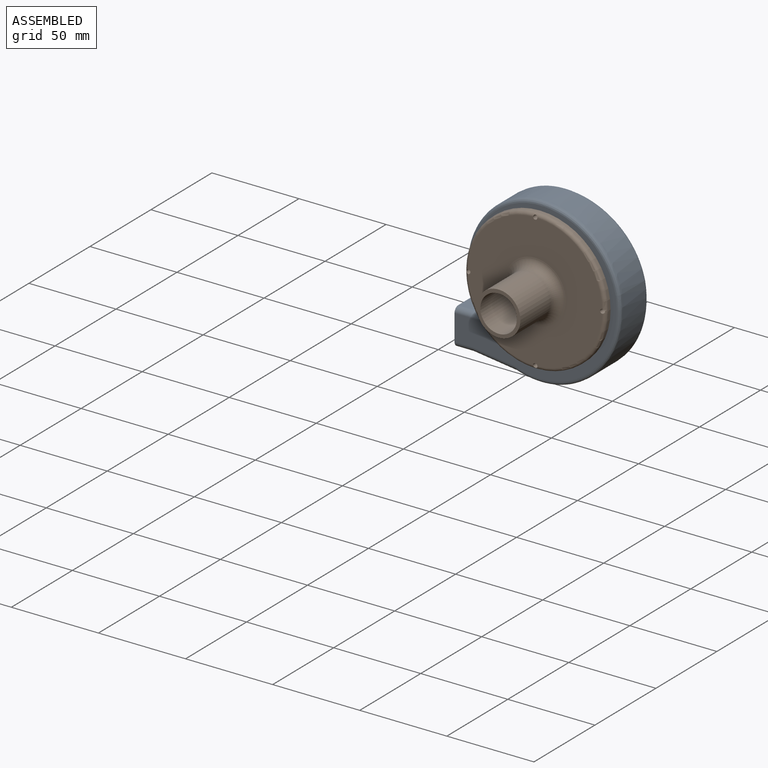
[diagram: assembled view]
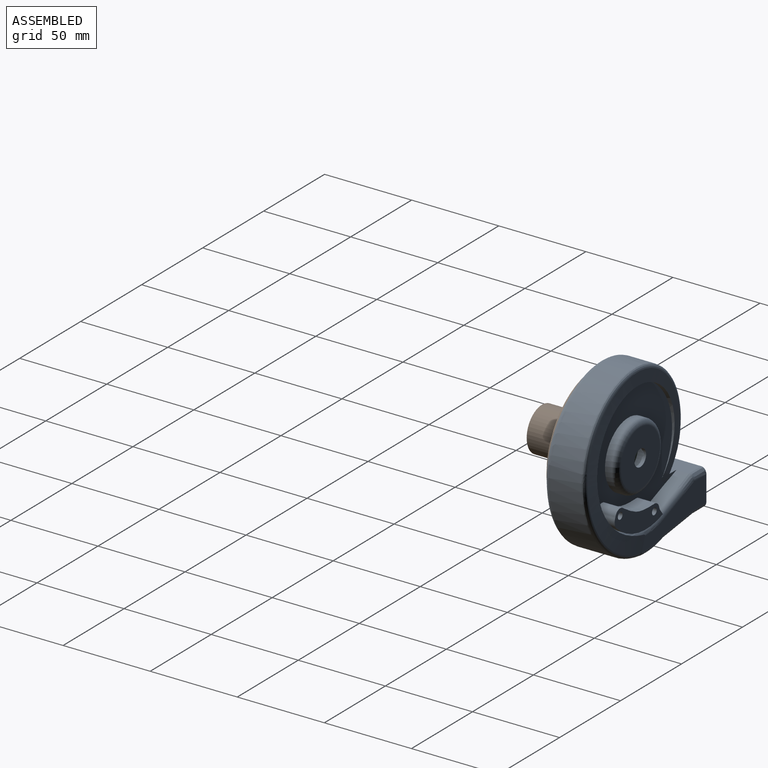
[diagram: assembled view, second angle]
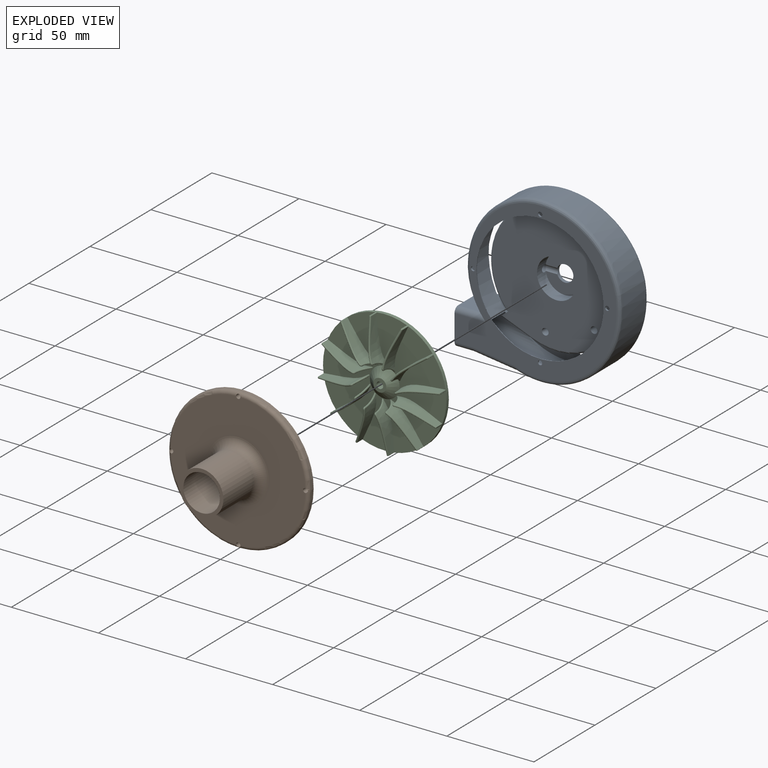
[diagram: exploded view]
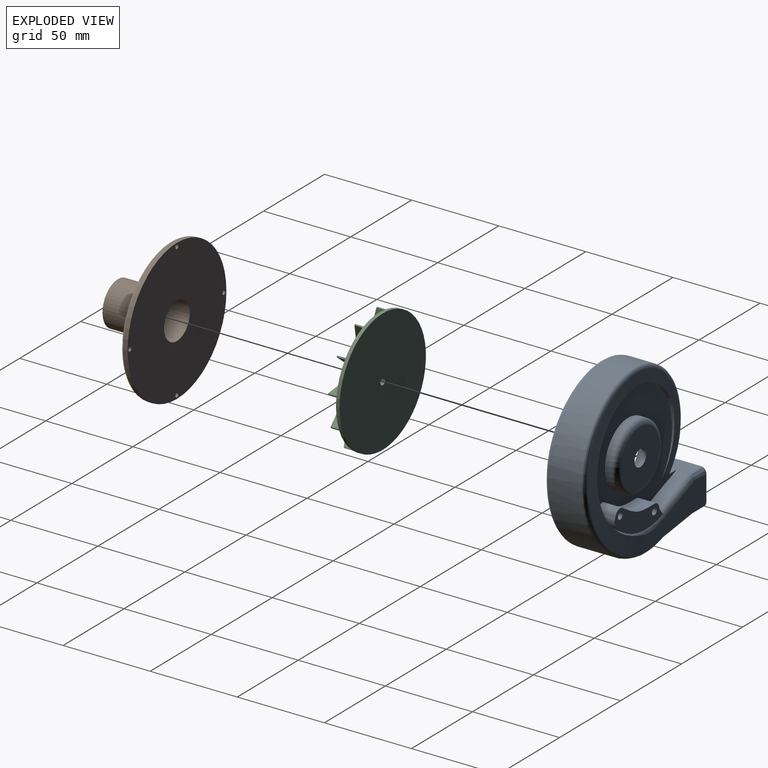
[diagram: exploded view, second angle]
ASSEMBLY  parts=3 mates=2
PART A: 104 faces, bbox 104.8x30.8x105.3 mm
  f0: plane 16.11x12mm, normal (0,0,1), area 193.3mm2, adj f4,f46,f85,f86
  f1: plane 14.11x12mm, normal (0,1,0), area 169.3mm2, adj f3,f4,f80,f86
  f2: plane 0.2x0.01mm, normal (1,0,0), area 0mm2, adj f31,f37,f81
  f3: plane 15.13x2.02mm, normal (1,0,0), area 14.4mm2, adj f1,f27,f44,f66,f80
  f4: plane 26x20.88mm, normal (-1,0,0), area 170.2mm2, adj f0,f1,f7,f9,f15,f37,f44,f65
  f5: cylinder r=48.79mm len=22.84mm, axis (0,-1,0), area 76.2mm2, adj f6,f14,f18,f26,f68,f73
  f6: cylinder r=200mm len=22.54mm, axis (0,-1,0), area 81mm2, adj f5,f22,f26,f68,f73
  f7: plane 93.13x90.21mm, normal (0,-1,0), area 2112.3mm2, adj f4,f21,f55,f63,f65,f68,f69,f70
  f8: bspline ~26.39x26mm, area 75.2mm2, adj f10,f12,f15,f24,f60
  f9: plane 52.72x20.81mm, normal (0,1,0), area 554mm2, adj f4,f25,f60,f61,f62,f64,f74,f78
  f10: bspline ~100.83x100.36mm, area 1519mm2, adj f8,f11,f12,f15,f16,f25,f62,f71
  f11: cylinder r=36mm len=72mm, axis (0,-1,0), area 742mm2, adj f10,f12,f62,f103
  f12: plane 72x69.38mm, normal (0,1,0), area 2561.7mm2, adj f8,f10,f11,f24,f49,f96,f97,f99
  f13: extruded ~42.63x36.9mm, area 992.2mm2, adj f14,f17,f19,f71,f72
  f14: extruded ~55.18x32.79mm, area 1322.9mm2, adj f5,f13,f18,f73
  f15: plane 20.18x15.76mm, normal (0,0,1), area 271.5mm2, adj f4,f8,f10,f16,f65,f78
  f16: extruded ~29.67x13.11mm, area 400.3mm2, adj f10,f15,f17,f21,f71
  f17: extruded ~44.67x38.41mm, area 880.9mm2, adj f13,f16,f20,f71
  f18: extruded ~55.18x32.79mm, area 69.5mm2, adj f5,f14,f19,f68
  f19: extruded ~42.63x36.9mm, area 60.7mm2, adj f13,f18,f20,f69
  f20: extruded ~44.67x38.41mm, area 64.8mm2, adj f17,f19,f21,f70
  f21: extruded ~32.67x10.85mm, area 85.7mm2, adj f7,f16,f20,f65,f70
  f22: extruded ~22x18.66mm, area 388.8mm2, adj f6,f23,f63,f64,f68,f73,f74,f75
  f23: plane 27.99x20mm, normal (-0.13,0,-0.99), area 564.8mm2, adj f22,f63,f64,f76
  f24: cylinder r=1500mm len=16.19mm, axis (0,-1,0), area 130.6mm2, adj f8,f12,f61,f99
  f25: cylinder r=2.1mm len=8.6mm, axis (0.32,0,-0.95), area 6mm2, adj f9,f10,f62,f75
  f26: bspline ~3.54x1.95mm, area 1.2mm2, adj f5,f6,f73
  f27: plane 88.61x82.51mm, normal (0,1,0), area 1230.7mm2, adj f3,f41,f42,f43,f44,f55,f56,f66
  f28: cylinder r=1498mm len=16.17mm, axis (0,-1,0), area 165.3mm2, adj f29,f31,f37,f53
  f29: cylinder r=38mm len=76mm, axis (0,-1,0), area 1025.7mm2, adj f28,f36,f37,f52,f87
  f30: plane 74x74mm, normal (0,-1,0), area 3905.8mm2, adj f47,f52,f53,f54,f93,f94
  f31: offset ~30.39x30mm, area 67.5mm2, adj f2,f28,f37,f54,f81,f83
  f32: extruded ~49.47x31.36mm, area 1143mm2, adj f45,f57,f88
  f33: extruded ~38.88x29.01mm, area 831.8mm2, adj f43,f56,f57
  f34: extruded ~42.34x36.63mm, area 836.2mm2, adj f35,f42,f56
  f35: extruded ~31.46x12.2mm, area 386.4mm2, adj f34,f41,f44
  f36: cylinder r=0.1mm len=8.86mm, axis (0.32,0,-0.95), area 0.1mm2, adj f29,f37,f40,f87
  f37: plane 52.72x21.01mm, normal (0,-1,0), area 484.1mm2, adj f2,f4,f28,f29,f31,f36,f40,f67
  f38: cylinder r=202mm len=20.59mm, axis (0,-1,0), area 72.7mm2, adj f40,f45,f87,f88
  f39: plane 26.38x13mm, normal (0.13,0,0.99), area 346mm2, adj f40,f46,f66,f67
  f40: extruded ~31.02x20mm, area 363.1mm2, adj f36,f37,f38,f39,f66,f67,f87,f88
  f41: extruded ~31.46x10.62mm, area 68mm2, adj f27,f35,f42,f44
  f42: extruded ~42.34x36.63mm, area 123mm2, adj f27,f34,f41,f56
  f43: extruded ~38.88x29.01mm, area 82.7mm2, adj f27,f33,f56,f57,f88
  f44: plane 22.02x19.67mm, normal (0,0,-1), area 320.3mm2, adj f3,f4,f27,f35,f41,f80,f81,f82
  f45: cylinder r=46.79mm len=20.36mm, axis (0,-1,0), area 64.4mm2, adj f32,f38,f88
  f46: plane 16.12x0.27mm, normal (1,0,0), area 3.8mm2, adj f0,f39,f66,f67
  f47: cylinder r=11.25mm len=22.5mm, axis (0,-1,0), area 485.4mm2, adj f30,f50,f59
  f48: plane 32x32mm, normal (0,1,0), area 733.4mm2, adj f51,f58
  f49: cylinder r=19mm len=38mm, axis (0,-1,0), area 471.7mm2, adj f12,f58,f59
  f50: plane 22.5x22.38mm, normal (0,-1,0), area 305.2mm2, adj f47,f51,f59
  f51: cylinder r=4.75mm len=9.5mm, axis (0,1,0), area 57.5mm2, adj f48,f50,f59
  f52: torus R=37mm, axis (0,-1,0), area 328.6mm2, adj f29,f30,f53
  f53: torus R=1499mm, axis (0,-1,0), area 27.3mm2, adj f28,f30,f52,f54
  f54: bspline ~16.77x7.29mm, area 9.5mm2, adj f30,f31,f53,f84
  f55: torus R=37.5mm, axis (0,-1,0), area 362.9mm2, adj f7,f27,f89,f90,f91,f92
  f56: cylinder r=100000mm len=17.05mm, axis (0,1,0), area 7.6mm2, adj f27,f33,f34,f42,f43
  f57: cylinder r=40mm len=17.96mm, axis (0,1,0), area 170mm2, adj f32,f33,f43,f88
  f58: torus R=16mm, axis (0,1,0), area 524.1mm2, adj f48,f49,f59
  f59: cylinder r=1.93mm len=14.45mm, axis (1,0,0), area 118.6mm2, adj f47,f49,f50,f51,f58
  f60: bspline ~20.64x10.6mm, area 45.5mm2, adj f8,f9,f61,f78
  f61: torus R=1497mm, axis (0,1,0), area 82mm2, adj f9,f24,f60,f62
  f62: torus R=39mm, axis (0,1,0), area 164.4mm2, adj f9,f10,f11,f25,f61,f98
  f63: cylinder r=3mm len=28.78mm, axis (0.99,0,-0.13), area 122.1mm2, adj f7,f22,f23,f68,f77
  f64: cylinder r=3mm len=28.78mm, axis (-0.99,0,0.13), area 122.1mm2, adj f9,f22,f23,f74,f79
  f65: cylinder r=3mm len=17.88mm, axis (-1,0,0), area 78.8mm2, adj f4,f7,f15,f21
  f66: cylinder r=5mm len=27.71mm, axis (0.99,0,-0.13), area 178.4mm2, adj f3,f27,f39,f40,f46,f86,f88
  f67: cylinder r=5mm len=27.71mm, axis (0.99,0,-0.13), area 152.1mm2, adj f37,f39,f40,f46,f85
  f68: bspline ~65.67x63.56mm, area 299.5mm2, adj f5,f6,f7,f18,f22,f63,f69
  f69: bspline ~47.73x38.83mm, area 187.8mm2, adj f7,f19,f68,f70
  f70: bspline ~64.64x49.26mm, area 236.8mm2, adj f7,f20,f21,f69
  f71: bspline ~66.25x46.81mm, area 227.8mm2, adj f10,f13,f16,f17,f72
  f72: bspline ~44.93x40.66mm, area 187.9mm2, adj f10,f13,f71,f73
  f73: bspline ~62.88x44.4mm, area 239.5mm2, adj f5,f6,f10,f14,f22,f26,f72,f75
  f74: bspline ~27.56x6.15mm, area 56.8mm2, adj f9,f22,f64,f75
  f75: bspline ~3.77x3.09mm, area 2.2mm2, adj f10,f22,f25,f73,f74
  f76: plane 20x10mm, normal (0,0,-1), area 200mm2, adj f4,f23,f77,f79
  f77: extruded ~10x3.03mm, area 47.3mm2, adj f4,f7,f63,f76
  f78: extruded ~10x3.3mm, area 49.5mm2, adj f4,f9,f15,f60
  f79: extruded ~10x3.03mm, area 47.3mm2, adj f4,f9,f64,f76
  f80: cylinder r=1mm len=12mm, axis (-1,0,0), area 18.8mm2, adj f1,f3,f4,f44
  f81: extruded ~12.15x1.3mm, area 20.5mm2, adj f2,f4,f31,f37,f44,f82,f83
  f82: cylinder r=2mm len=9.88mm, axis (0,-1,0), area 18.9mm2, adj f44,f81,f83,f84
  f83: cylinder r=0.5mm len=9.5mm, axis (0,-1,0), area 2.9mm2, adj f31,f81,f82,f84
  f84: bspline ~2.2x1.52mm, area 0.7mm2, adj f44,f54,f82,f83
  f85: extruded ~12x4.8mm, area 75.7mm2, adj f0,f4,f37,f67
  f86: extruded ~12x2.45mm, area 36.8mm2, adj f0,f1,f4,f66
  f87: bspline ~13.93x9.29mm, area 40.8mm2, adj f29,f36,f38,f40
  f88: bspline ~89.83x65.05mm, area 522.6mm2, adj f27,f32,f38,f40,f43,f45,f57,f66
  f89: cylinder r=1.25mm len=2.5mm, axis (0,-1,0), area 7.9mm2, adj f7,f27,f55
  f90: cylinder r=1.25mm len=2.5mm, axis (0,-1,0), area 7.9mm2, adj f7,f27,f55
  f91: cylinder r=1.25mm len=2.5mm, axis (0,-1,0), area 7.8mm2, adj f7,f27,f55
  f92: cylinder r=1.25mm len=2.5mm, axis (0,-1,0), area 7.9mm2, adj f7,f27,f55
  f93: cylinder r=1.93mm len=12.5mm, axis (0,-1,0), area 151.2mm2, adj f30,f95
  f94: cylinder r=1.93mm len=12.5mm, axis (0,-1,0), area 151.2mm2, adj f30,f95
  f95: plane 39.55x19.04mm, normal (0,1,0), area 376.7mm2, adj f93,f94,f96,f97,f98,f99,f100,f101
  f96: cylinder r=4mm len=10.5mm, axis (0,-1,0), area 87.8mm2, adj f12,f95,f97,f102
  f97: cylinder r=5mm len=10.5mm, axis (0,-1,0), area 8.5mm2, adj f12,f95,f96,f103
  f98: cylinder r=36mm len=37.95mm, axis (0,-1,0), area 122.1mm2, adj f62,f95,f99,f103
  f99: plane 10.5x3.02mm, normal (-0.81,0,0.59), area 39.4mm2, adj f12,f24,f95,f98,f100
  f100: cylinder r=5mm len=10.5mm, axis (0,-1,0), area 22mm2, adj f12,f95,f99,f101
  f101: cylinder r=4mm len=10.5mm, axis (0,-1,0), area 62mm2, adj f12,f95,f100,f102
  f102: extruded ~24.73x10.5mm, area 277.3mm2, adj f12,f95,f96,f101
  f103: cylinder r=5mm len=10.5mm, axis (0,1,0), area 65mm2, adj f11,f12,f95,f97,f98
PART B: 12 faces, bbox 87.7x34x87.7 mm
  f0: cylinder r=40.5mm len=81mm, axis (0,1,0), area 508.9mm2, adj f2,f8
  f1: plane 76.96x76.96mm, normal (0,-1,0), area 3684.8mm2, adj f3,f5,f6,f7,f8,f11
  f2: plane 81x81mm, normal (0,1,0), area 4787mm2, adj f0,f3,f4,f5,f6,f7
  f3: cylinder r=1.25mm len=4mm, axis (0,-1,0), area 30.6mm2, adj f1,f2,f8
  f4: cylinder r=10.5mm len=34mm, axis (0,-1,0), area 2243.1mm2, adj f2,f10
  f5: cylinder r=1.25mm len=4mm, axis (0,-1,0), area 30.6mm2, adj f1,f2,f8
  f6: cylinder r=1.25mm len=4mm, axis (0,-1,0), area 30.6mm2, adj f1,f2,f8
  f7: cylinder r=1.25mm len=4mm, axis (0,-1,0), area 30.6mm2, adj f1,f2,f8
  f8: torus R=38.5mm, axis (0,-1,0), area 774.6mm2, adj f0,f1,f3,f5,f6,f7
  f9: cylinder r=12.5mm len=25mm, axis (0,1,0), area 1963.5mm2, adj f10,f11
  f10: plane 25x25mm, normal (0,-1,0), area 144.5mm2, adj f4,f9
  f11: torus R=17.5mm, axis (0,-1,0), area 706.5mm2, adj f1,f9
PART C: 282 faces, bbox 90.4x90.4x12.4 mm
  f0: plane 70.88x70.88mm, normal (0,0,1), area 3385.4mm2, adj f1,f2,f3,f4,f5,f6,f7,f22
  f1: extruded ~18.8x17.74mm, area 168.2mm2, adj f0,f4,f5,f17,f19,f21
  f2: extruded ~19.17x18.2mm, area 172.2mm2, adj f0,f3,f7,f16,f18,f20
  f3: cylinder r=1mm len=0.05mm, axis (0,0,-1), area 0mm2, adj f0,f2,f22
  f4: cylinder r=5mm len=0.08mm, axis (0,0,-1), area 0mm2, adj f0,f1,f23
  f5: cylinder r=0.25mm len=4.56mm, axis (0,0,-1), area 1.8mm2, adj f0,f1,f6,f15
  f6: plane 4.62x0.4mm, normal (-0.57,0.82,0), area 2.3mm2, adj f0,f5,f7,f11,f12,f15
  f7: cylinder r=0.25mm len=4.56mm, axis (0,0,-1), area 1.8mm2, adj f0,f2,f6,f12,f139
  f8: cone r=35.5mm half-angle=78deg, axis (0,0,-1), area 0mm2, adj f10,f11,f16,f17
  f9: revolved ~8.52x3.66mm, area 0mm2, adj f10,f20,f21,f22,f23
  f10: torus R=13mm, axis (0,0,-1), area 0mm2, adj f8,f9,f18,f19
  f11: bspline ~12.03x8.5mm, area 0.2mm2, adj f6,f8,f13,f14
  f12: bspline ~0.37x0.28mm, area 0mm2, adj f6,f7,f13,f16
  f13: bspline ~0.63x0.57mm, area 0.1mm2, adj f11,f12,f16
  f14: bspline ~0.61x0.57mm, area 0.1mm2, adj f11,f15,f17
  f15: bspline ~0.37x0.28mm, area 0mm2, adj f5,f6,f14,f17
  f16: bspline ~26.91x22.07mm, area 17.8mm2, adj f2,f8,f12,f13,f18
  f17: bspline ~21.01x18.03mm, area 17.6mm2, adj f1,f8,f14,f15,f19
  f18: bspline ~1.41x1.17mm, area 1mm2, adj f2,f10,f16,f20
  f19: bspline ~1.71x1.33mm, area 1.3mm2, adj f1,f10,f17,f21
  f20: bspline ~11.15x4.64mm, area 5.2mm2, adj f2,f9,f18,f22
  f21: bspline ~11.1x4.69mm, area 9.7mm2, adj f1,f9,f19,f23
  f22: bspline ~1.2x0.67mm, area 0.2mm2, adj f0,f3,f9,f20,f23
  f23: bspline ~2.02x1.99mm, area 0.5mm2, adj f0,f4,f9,f21,f22
  f24: extruded ~24.76x9.27mm, area 168.2mm2, adj f0,f27,f28,f40,f42,f44
  f25: extruded ~25.35x9.27mm, area 172.2mm2, adj f0,f26,f30,f39,f41,f43
  f26: cylinder r=1mm len=0.05mm, axis (0,0,-1), area 0mm2, adj f0,f25,f45
  f27: cylinder r=5mm len=0.08mm, axis (0,0,-1), area 0mm2, adj f0,f24,f46
  f28: cylinder r=0.25mm len=4.56mm, axis (0,0,-1), area 1.8mm2, adj f0,f24,f29,f38
  f29: plane 4.62x0.44mm, normal (-0.9,0.43,0), area 2.3mm2, adj f0,f28,f30,f34,f35,f38
  f30: cylinder r=0.25mm len=4.56mm, axis (0,0,-1), area 1.8mm2, adj f0,f25,f29,f35,f139
  f31: cone r=35.5mm half-angle=78deg, axis (0,0,-1), area 0mm2, adj f33,f34,f39,f40
  f32: revolved ~8.52x3.67mm, area 0mm2, adj f33,f43,f44,f45,f46
  f33: torus R=13mm, axis (0,0,-1), area 0mm2, adj f31,f32,f41,f42
  f34: bspline ~13.79x6.79mm, area 0.2mm2, adj f29,f31,f36,f37
  f35: bspline ~0.35x0.28mm, area 0mm2, adj f29,f30,f36,f39
  f36: bspline ~0.57x0.57mm, area 0.1mm2, adj f34,f35,f39
  f37: bspline ~0.62x0.57mm, area 0.1mm2, adj f34,f38,f40
  f38: bspline ~0.35x0.28mm, area 0mm2, adj f28,f29,f37,f40
  f39: bspline ~26.07x9.66mm, area 17.8mm2, adj f25,f31,f35,f36,f41
  f40: bspline ~24.28x9.57mm, area 17.6mm2, adj f24,f31,f37,f38,f42
  f41: bspline ~1.49x1.04mm, area 1mm2, adj f25,f33,f39,f43
  f42: bspline ~1.76x1.05mm, area 1.3mm2, adj f24,f33,f40,f44
  f43: bspline ~11.15x5.01mm, area 5.2mm2, adj f25,f32,f41,f45
  f44: bspline ~11.1x5.18mm, area 9.7mm2, adj f24,f32,f42,f46
  f45: bspline ~1.09x0.67mm, area 0.2mm2, adj f0,f26,f32,f43,f46
  f46: bspline ~2.02x2.01mm, area 0.5mm2, adj f0,f27,f32,f44,f45
  f47: extruded ~25.15x9.27mm, area 168.2mm2, adj f0,f50,f51,f63,f65,f67
  f48: extruded ~25.7x9.27mm, area 172.2mm2, adj f0,f49,f53,f62,f64,f66
  f49: cylinder r=1mm len=0.04mm, axis (0,0,-1), area 0mm2, adj f0,f48,f68
  f50: cylinder r=5mm len=0.08mm, axis (0,0,-1), area 0mm2, adj f0,f47,f69
  f51: cylinder r=0.25mm len=4.56mm, axis (0,0,-1), area 1.8mm2, adj f0,f47,f52,f61
  f52: plane 4.62x0.49mm, normal (-1,-0.08,0), area 2.3mm2, adj f0,f51,f53,f57,f58,f61
  f53: cylinder r=0.25mm len=4.56mm, axis (0,0,-1), area 1.8mm2, adj f0,f48,f52,f58,f139
  f54: cone r=35.5mm half-angle=78deg, axis (0,0,-1), area 0mm2, adj f56,f57,f62,f63
  f55: revolved ~8.52x3.1mm, area 0mm2, adj f56,f66,f67,f68,f69
  f56: torus R=13mm, axis (0,0,-1), area 0mm2, adj f54,f55,f64,f65
  f57: bspline ~14.52x1.59mm, area 0.2mm2, adj f52,f54,f59,f60
  f58: bspline ~0.29x0.28mm, area 0mm2, adj f52,f53,f59,f62
  f59: bspline ~0.57x0.52mm, area 0.1mm2, adj f57,f58,f62
  f60: bspline ~0.57x0.49mm, area 0.1mm2, adj f57,f61,f63
  f61: bspline ~0.29x0.28mm, area 0mm2, adj f51,f52,f60,f63
  f62: bspline ~34.22x7.83mm, area 17.8mm2, adj f48,f54,f58,f59,f64
  f63: bspline ~25.54x5.98mm, area 17.6mm2, adj f47,f54,f60,f61,f65
  f64: bspline ~1.42x1.04mm, area 1mm2, adj f48,f56,f62,f66
  f65: bspline ~1.56x1.21mm, area 1.3mm2, adj f47,f56,f63,f67
  f66: bspline ~11.15x4.09mm, area 5.2mm2, adj f48,f55,f64,f68
  f67: bspline ~8.72x3.72mm, area 9.7mm2, adj f47,f55,f65,f69
  f68: bspline ~0.99x0.69mm, area 0.2mm2, adj f0,f49,f55,f66,f69
  f69: bspline ~1.09x0.82mm, area 0.5mm2, adj f0,f50,f55,f67,f68
  f70: extruded ~25.15x9.27mm, area 168.2mm2, adj f0,f73,f74,f86,f88,f90
  f71: extruded ~25.7x9.27mm, area 172.2mm2, adj f0,f72,f76,f85,f87,f89
  f72: cylinder r=1mm len=0.04mm, axis (0,0,-1), area 0mm2, adj f0,f71,f91
  f73: cylinder r=5mm len=0.08mm, axis (0,0,-1), area 0mm2, adj f0,f70,f92
  f74: cylinder r=0.25mm len=4.56mm, axis (0,0,-1), area 1.8mm2, adj f0,f70,f75,f84
  f75: plane 4.62x0.49mm, normal (0.08,-1,0), area 2.3mm2, adj f0,f74,f76,f80,f81,f84
  f76: cylinder r=0.25mm len=4.56mm, axis (0,0,-1), area 1.8mm2, adj f0,f71,f75,f81,f139
  f77: cone r=35.5mm half-angle=78deg, axis (0,0,-1), area 0mm2, adj f79,f80,f85,f86
  f78: revolved ~8.52x3.1mm, area 0mm2, adj f79,f89,f90,f91,f92
  f79: torus R=13mm, axis (0,0,-1), area 0mm2, adj f77,f78,f87,f88
  f80: bspline ~14.52x1.59mm, area 0.2mm2, adj f75,f77,f82,f83
  f81: bspline ~0.29x0.28mm, area 0mm2, adj f75,f76,f82,f85
  f82: bspline ~0.57x0.52mm, area 0.1mm2, adj f80,f81,f85
  f83: bspline ~0.57x0.49mm, area 0.1mm2, adj f80,f84,f86
  f84: bspline ~0.29x0.28mm, area 0mm2, adj f74,f75,f83,f86
  f85: bspline ~34.22x7.83mm, area 17.8mm2, adj f71,f77,f81,f82,f87
  f86: bspline ~26.86x6.27mm, area 17.6mm2, adj f70,f77,f83,f84,f88
  f87: bspline ~1.42x1.04mm, area 1mm2, adj f71,f79,f85,f89
  f88: bspline ~1.56x1.21mm, area 1.3mm2, adj f70,f79,f86,f90
  f89: bspline ~11.15x4.09mm, area 5.2mm2, adj f71,f78,f87,f91
  f90: bspline ~8.72x3.72mm, area 9.7mm2, adj f70,f78,f88,f92
  f91: bspline ~0.99x0.69mm, area 0.2mm2, adj f0,f72,f78,f89,f92
  f92: bspline ~1.09x0.82mm, area 0.5mm2, adj f0,f73,f78,f90,f91
  f93: extruded ~18.8x17.74mm, area 168.2mm2, adj f0,f96,f97,f109,f111,f113
  f94: extruded ~19.17x18.2mm, area 172.2mm2, adj f0,f95,f99,f108,f110,f112
  f95: cylinder r=1mm len=0.05mm, axis (0,0,-1), area 0mm2, adj f0,f94,f114
  f96: cylinder r=5mm len=0.08mm, axis (0,0,-1), area 0mm2, adj f0,f93,f115
  f97: cylinder r=0.25mm len=4.56mm, axis (0,0,-1), area 1.8mm2, adj f0,f93,f98,f107
  f98: plane 4.62x0.4mm, normal (0.57,-0.82,0), area 2.3mm2, adj f0,f97,f99,f103,f104,f107
  f99: cylinder r=0.25mm len=4.56mm, axis (0,0,-1), area 1.8mm2, adj f0,f94,f98,f104,f139
  f100: cone r=35.5mm half-angle=78deg, axis (0,0,-1), area 0mm2, adj f102,f103,f108,f109
  f101: revolved ~8.52x3.66mm, area 0mm2, adj f102,f112,f113,f114,f115
  f102: torus R=13mm, axis (0,0,-1), area 0mm2, adj f100,f101,f110,f111
  f103: bspline ~12.03x8.5mm, area 0.2mm2, adj f98,f100,f105,f106
  f104: bspline ~0.37x0.28mm, area 0mm2, adj f98,f99,f105,f108
  f105: bspline ~0.63x0.57mm, area 0.1mm2, adj f103,f104,f108
  f106: bspline ~0.61x0.57mm, area 0.1mm2, adj f103,f107,f109
  f107: bspline ~0.37x0.28mm, area 0mm2, adj f97,f98,f106,f109
  f108: bspline ~26.91x22.07mm, area 17.8mm2, adj f94,f100,f104,f105,f110
  f109: bspline ~21.01x18.03mm, area 17.6mm2, adj f93,f100,f106,f107,f111
  f110: bspline ~1.41x1.17mm, area 1mm2, adj f94,f102,f108,f112
  f111: bspline ~1.71x1.33mm, area 1.3mm2, adj f93,f102,f109,f113
  f112: bspline ~11.15x4.64mm, area 5.2mm2, adj f94,f101,f110,f114
  f113: bspline ~11.1x4.69mm, area 9.7mm2, adj f93,f101,f111,f115
  f114: bspline ~1.2x0.67mm, area 0.2mm2, adj f0,f95,f101,f112,f115
  f115: bspline ~2.02x1.99mm, area 0.5mm2, adj f0,f96,f101,f113,f114
  f116: extruded ~25.15x9.27mm, area 168.2mm2, adj f0,f119,f120,f132,f134,f136
  f117: extruded ~25.7x9.27mm, area 172.2mm2, adj f0,f118,f122,f131,f133,f135
  f118: cylinder r=1mm len=0.04mm, axis (0,0,-1), area 0mm2, adj f0,f117,f137
  f119: cylinder r=5mm len=0.08mm, axis (0,0,-1), area 0mm2, adj f0,f116,f138
  f120: cylinder r=0.25mm len=4.56mm, axis (0,0,-1), area 1.8mm2, adj f0,f116,f121,f130
  f121: plane 4.62x0.49mm, normal (-0.08,1,0), area 2.3mm2, adj f0,f120,f122,f126,f127,f130
  f122: cylinder r=0.25mm len=4.56mm, axis (0,0,-1), area 1.8mm2, adj f0,f117,f121,f127,f139
  f123: cone r=35.5mm half-angle=78deg, axis (0,0,-1), area 0mm2, adj f125,f126,f131,f132
  f124: revolved ~8.52x3.1mm, area 0mm2, adj f125,f135,f136,f137,f138
  f125: torus R=13mm, axis (0,0,-1), area 0mm2, adj f123,f124,f133,f134
  f126: bspline ~14.52x1.59mm, area 0.2mm2, adj f121,f123,f128,f129
  f127: bspline ~0.29x0.28mm, area 0mm2, adj f121,f122,f128,f131
  f128: bspline ~0.57x0.52mm, area 0.1mm2, adj f126,f127,f131
  f129: bspline ~0.57x0.49mm, area 0.1mm2, adj f126,f130,f132
  f130: bspline ~0.29x0.28mm, area 0mm2, adj f120,f121,f129,f132
  f131: bspline ~34.22x7.83mm, area 17.8mm2, adj f117,f123,f127,f128,f133
  f132: bspline ~25.54x5.98mm, area 17.6mm2, adj f116,f123,f129,f130,f134
  f133: bspline ~1.42x1.04mm, area 1mm2, adj f117,f125,f131,f135
  f134: bspline ~1.56x1.21mm, area 1.3mm2, adj f116,f125,f132,f136
  f135: bspline ~11.15x4.09mm, area 5.2mm2, adj f117,f124,f133,f137
  f136: bspline ~11.1x4.48mm, area 9.7mm2, adj f116,f124,f134,f138
  f137: bspline ~0.99x0.69mm, area 0.2mm2, adj f0,f118,f124,f135,f138
  f138: bspline ~1.09x0.82mm, area 0.5mm2, adj f0,f119,f124,f136,f137
  f139: cylinder r=35.42mm len=70.84mm, axis (0,0,1), area 445.1mm2, adj f0,f7,f30,f53,f76,f99,f122,f140
  f140: plane 70.84x70.84mm, normal (0,0,-1), area 3929.8mm2, adj f139,f143
  f141: cone r=8.5mm half-angle=50deg, axis (0,0,-1), area 239.2mm2, adj f0,f142
  f142: plane 7.47x7.47mm, normal (0,0,1), area 32.1mm2, adj f141,f143
  f143: cylinder r=1.93mm len=6mm, axis (0,0,1), area 72.6mm2, adj f140,f142
  f144: extruded ~18.8x17.74mm, area 168.2mm2, adj f0,f147,f148,f160,f162,f164
  f145: extruded ~19.17x18.2mm, area 172.2mm2, adj f0,f146,f150,f159,f161,f163
  f146: cylinder r=1mm len=0.05mm, axis (0,0,-1), area 0mm2, adj f0,f145,f165
  f147: cylinder r=5mm len=0.08mm, axis (0,0,-1), area 0mm2, adj f0,f144,f166
  f148: cylinder r=0.25mm len=4.56mm, axis (0,0,-1), area 1.8mm2, adj f0,f144,f149,f158
  f149: plane 4.62x0.4mm, normal (-0.82,-0.57,0), area 2.3mm2, adj f0,f148,f150,f154,f155,f158
  f150: cylinder r=0.25mm len=4.56mm, axis (0,0,-1), area 1.8mm2, adj f0,f139,f145,f149,f155
  f151: cone r=35.5mm half-angle=78deg, axis (0,0,-1), area 0mm2, adj f153,f154,f159,f160
  f152: revolved ~8.52x3.66mm, area 0mm2, adj f153,f163,f164,f165,f166
  f153: torus R=13mm, axis (0,0,-1), area 0mm2, adj f151,f152,f161,f162
  f154: bspline ~12.03x8.5mm, area 0.2mm2, adj f149,f151,f156,f157
  f155: bspline ~0.37x0.28mm, area 0mm2, adj f149,f150,f156,f159
  f156: bspline ~0.63x0.57mm, area 0.1mm2, adj f154,f155,f159
  f157: bspline ~0.61x0.57mm, area 0.1mm2, adj f154,f158,f160
  f158: bspline ~0.37x0.28mm, area 0mm2, adj f148,f149,f157,f160
  f159: bspline ~26.91x22.07mm, area 17.8mm2, adj f145,f151,f155,f156,f161
  f160: bspline ~21.01x18.03mm, area 17.6mm2, adj f144,f151,f157,f158,f162
  f161: bspline ~1.41x1.17mm, area 1mm2, adj f145,f153,f159,f163
  f162: bspline ~1.71x1.33mm, area 1.3mm2, adj f144,f153,f160,f164
  f163: bspline ~11.15x4.64mm, area 5.2mm2, adj f145,f152,f161,f165
  f164: bspline ~11.1x4.69mm, area 9.7mm2, adj f144,f152,f162,f166
  f165: bspline ~1.2x0.67mm, area 0.2mm2, adj f0,f146,f152,f163,f166
  f166: bspline ~2.02x1.99mm, area 0.5mm2, adj f0,f147,f152,f164,f165
  f167: extruded ~24.76x9.27mm, area 168.2mm2, adj f0,f170,f171,f183,f185,f187
  f168: extruded ~25.35x9.27mm, area 172.2mm2, adj f0,f169,f173,f182,f184,f186
  f169: cylinder r=1mm len=0.05mm, axis (0,0,-1), area 0mm2, adj f0,f168,f188
  f170: cylinder r=5mm len=0.08mm, axis (0,0,-1), area 0mm2, adj f0,f167,f189
  f171: cylinder r=0.25mm len=4.56mm, axis (0,0,-1), area 1.8mm2, adj f0,f167,f172,f181
  f172: plane 4.62x0.44mm, normal (-0.43,-0.9,0), area 2.3mm2, adj f0,f171,f173,f177,f178,f181
  f173: cylinder r=0.25mm len=4.56mm, axis (0,0,-1), area 1.8mm2, adj f0,f139,f168,f172,f178
  f174: cone r=35.5mm half-angle=78deg, axis (0,0,-1), area 0mm2, adj f176,f177,f182,f183
  f175: revolved ~8.52x3.67mm, area 0mm2, adj f176,f186,f187,f188,f189
  f176: torus R=13mm, axis (0,0,-1), area 0mm2, adj f174,f175,f184,f185
  f177: bspline ~13.79x6.79mm, area 0.2mm2, adj f172,f174,f179,f180
  f178: bspline ~0.35x0.28mm, area 0mm2, adj f172,f173,f179,f182
  f179: bspline ~0.57x0.57mm, area 0.1mm2, adj f177,f178,f182
  f180: bspline ~0.62x0.57mm, area 0.1mm2, adj f177,f181,f183
  f181: bspline ~0.35x0.28mm, area 0mm2, adj f171,f172,f180,f183
  f182: bspline ~26.07x9.66mm, area 17.8mm2, adj f168,f174,f178,f179,f184
  f183: bspline ~25.79x9.57mm, area 17.6mm2, adj f167,f174,f180,f181,f185
  f184: bspline ~1.49x1.04mm, area 1mm2, adj f168,f176,f182,f186
  f185: bspline ~1.76x1.05mm, area 1.3mm2, adj f167,f176,f183,f187
  f186: bspline ~11.15x5.01mm, area 5.2mm2, adj f168,f175,f184,f188
  f187: bspline ~8.72x4.04mm, area 9.7mm2, adj f167,f175,f185,f189
  f188: bspline ~0.86x0.54mm, area 0.2mm2, adj f0,f169,f175,f186,f189
  f189: bspline ~2.02x2.01mm, area 0.5mm2, adj f0,f170,f175,f187,f188
  f190: extruded ~24.76x9.27mm, area 168.2mm2, adj f0,f193,f194,f206,f208,f210
  f191: extruded ~25.35x9.27mm, area 172.2mm2, adj f0,f192,f196,f205,f207,f209
  f192: cylinder r=1mm len=0.05mm, axis (0,0,-1), area 0mm2, adj f0,f191,f211
  f193: cylinder r=5mm len=0.08mm, axis (0,0,-1), area 0mm2, adj f0,f190,f212
  f194: cylinder r=0.25mm len=4.56mm, axis (0,0,-1), area 1.8mm2, adj f0,f190,f195,f204
  f195: plane 4.62x0.44mm, normal (0.9,-0.43,0), area 2.3mm2, adj f0,f194,f196,f200,f201,f204
  f196: cylinder r=0.25mm len=4.56mm, axis (0,0,-1), area 1.8mm2, adj f0,f139,f191,f195,f201
  f197: cone r=35.5mm half-angle=78deg, axis (0,0,-1), area 0mm2, adj f199,f200,f205,f206
  f198: revolved ~8.52x3.67mm, area 0mm2, adj f199,f209,f210,f211,f212
  f199: torus R=13mm, axis (0,0,-1), area 0mm2, adj f197,f198,f207,f208
  f200: bspline ~13.79x6.79mm, area 0.2mm2, adj f195,f197,f202,f203
  f201: bspline ~0.35x0.28mm, area 0mm2, adj f195,f196,f202,f205
  f202: bspline ~0.57x0.57mm, area 0.1mm2, adj f200,f201,f205
  f203: bspline ~0.62x0.57mm, area 0.1mm2, adj f200,f204,f206
  f204: bspline ~0.35x0.28mm, area 0mm2, adj f194,f195,f203,f206
  f205: bspline ~26.07x9.66mm, area 17.8mm2, adj f191,f197,f201,f202,f207
  f206: bspline ~25.79x9.57mm, area 17.6mm2, adj f190,f197,f203,f204,f208
  f207: bspline ~1.49x1.04mm, area 1mm2, adj f191,f199,f205,f209
  f208: bspline ~1.76x1.05mm, area 1.3mm2, adj f190,f199,f206,f210
  f209: bspline ~11.15x5.01mm, area 5.2mm2, adj f191,f198,f207,f211
  f210: bspline ~11.1x5.18mm, area 9.7mm2, adj f190,f198,f208,f212
  f211: bspline ~0.86x0.54mm, area 0.2mm2, adj f0,f192,f198,f209,f212
  f212: bspline ~2.02x2.01mm, area 0.5mm2, adj f0,f193,f198,f210,f211
  f213: extruded ~25.15x9.27mm, area 168.2mm2, adj f0,f216,f217,f229,f231,f233
  f214: extruded ~25.7x9.27mm, area 172.2mm2, adj f0,f215,f219,f228,f230,f232
  f215: cylinder r=1mm len=0.04mm, axis (0,0,-1), area 0mm2, adj f0,f214,f234
  f216: cylinder r=5mm len=0.08mm, axis (0,0,-1), area 0mm2, adj f0,f213,f235
  f217: cylinder r=0.25mm len=4.56mm, axis (0,0,-1), area 1.8mm2, adj f0,f213,f218,f227
  f218: plane 4.62x0.49mm, normal (1,0.08,0), area 2.3mm2, adj f0,f217,f219,f223,f224,f227
  f219: cylinder r=0.25mm len=4.56mm, axis (0,0,-1), area 1.8mm2, adj f0,f139,f214,f218,f224
  f220: cone r=35.5mm half-angle=78deg, axis (0,0,-1), area 0mm2, adj f222,f223,f228,f229
  f221: revolved ~8.52x3.1mm, area 0mm2, adj f222,f232,f233,f234,f235
  f222: torus R=13mm, axis (0,0,-1), area 0mm2, adj f220,f221,f230,f231
  f223: bspline ~14.52x1.59mm, area 0.2mm2, adj f218,f220,f225,f226
  f224: bspline ~0.29x0.28mm, area 0mm2, adj f218,f219,f225,f228
  f225: bspline ~0.57x0.52mm, area 0.1mm2, adj f223,f224,f228
  f226: bspline ~0.57x0.49mm, area 0.1mm2, adj f223,f227,f229
  f227: bspline ~0.29x0.28mm, area 0mm2, adj f217,f218,f226,f229
  f228: bspline ~34.22x7.83mm, area 17.8mm2, adj f214,f220,f224,f225,f230
  f229: bspline ~25.54x5.98mm, area 17.6mm2, adj f213,f220,f226,f227,f231
  f230: bspline ~1.42x1.04mm, area 1mm2, adj f214,f222,f228,f232
  f231: bspline ~1.56x1.21mm, area 1.3mm2, adj f213,f222,f229,f233
  f232: bspline ~11.15x4.09mm, area 5.2mm2, adj f214,f221,f230,f234
  f233: bspline ~11.1x4.48mm, area 9.7mm2, adj f213,f221,f231,f235
  f234: bspline ~0.99x0.69mm, area 0.2mm2, adj f0,f215,f221,f232,f235
  f235: bspline ~1.09x0.82mm, area 0.5mm2, adj f0,f216,f221,f233,f234
  f236: extruded ~18.8x17.74mm, area 168.2mm2, adj f0,f239,f240,f252,f254,f256
  f237: extruded ~19.17x18.2mm, area 172.2mm2, adj f0,f238,f242,f251,f253,f255
  f238: cylinder r=1mm len=0.05mm, axis (0,0,-1), area 0mm2, adj f0,f237,f257
  f239: cylinder r=5mm len=0.08mm, axis (0,0,-1), area 0mm2, adj f0,f236,f258
  f240: cylinder r=0.25mm len=4.56mm, axis (0,0,-1), area 1.8mm2, adj f0,f236,f241,f250
  f241: plane 4.62x0.4mm, normal (0.82,0.57,0), area 2.3mm2, adj f0,f240,f242,f246,f247,f250
  f242: cylinder r=0.25mm len=4.56mm, axis (0,0,-1), area 1.8mm2, adj f0,f139,f237,f241,f247
  f243: cone r=35.5mm half-angle=78deg, axis (0,0,-1), area 0mm2, adj f245,f246,f251,f252
  f244: revolved ~8.52x3.66mm, area 0mm2, adj f245,f255,f256,f257,f258
  f245: torus R=13mm, axis (0,0,-1), area 0mm2, adj f243,f244,f253,f254
  f246: bspline ~12.03x8.5mm, area 0.2mm2, adj f241,f243,f248,f249
  f247: bspline ~0.37x0.28mm, area 0mm2, adj f241,f242,f248,f251
  f248: bspline ~0.63x0.57mm, area 0.1mm2, adj f246,f247,f251
  f249: bspline ~0.61x0.57mm, area 0.1mm2, adj f246,f250,f252
  f250: bspline ~0.37x0.28mm, area 0mm2, adj f240,f241,f249,f252
  f251: bspline ~26.91x22.07mm, area 17.8mm2, adj f237,f243,f247,f248,f253
  f252: bspline ~21.01x18.03mm, area 17.6mm2, adj f236,f243,f249,f250,f254
  f253: bspline ~1.41x1.17mm, area 1mm2, adj f237,f245,f251,f255
  f254: bspline ~1.71x1.33mm, area 1.3mm2, adj f236,f245,f252,f256
  f255: bspline ~11.15x4.64mm, area 5.2mm2, adj f237,f244,f253,f257
  f256: bspline ~8.72x3.44mm, area 9.7mm2, adj f236,f244,f254,f258
  f257: bspline ~1.2x0.67mm, area 0.2mm2, adj f0,f238,f244,f255,f258
  f258: bspline ~2.02x1.99mm, area 0.5mm2, adj f0,f239,f244,f256,f257
  f259: extruded ~24.76x9.27mm, area 168.2mm2, adj f0,f262,f263,f275,f277,f279
  f260: extruded ~25.35x9.27mm, area 172.2mm2, adj f0,f261,f265,f274,f276,f278
  f261: cylinder r=1mm len=0.05mm, axis (0,0,-1), area 0mm2, adj f0,f260,f280
  f262: cylinder r=5mm len=0.08mm, axis (0,0,-1), area 0mm2, adj f0,f259,f281
  f263: cylinder r=0.25mm len=4.56mm, axis (0,0,-1), area 1.8mm2, adj f0,f259,f264,f273
  f264: plane 4.62x0.44mm, normal (0.43,0.9,0), area 2.3mm2, adj f0,f263,f265,f269,f270,f273
  f265: cylinder r=0.25mm len=4.56mm, axis (0,0,-1), area 1.8mm2, adj f0,f139,f260,f264,f270
  f266: cone r=35.5mm half-angle=78deg, axis (0,0,-1), area 0mm2, adj f268,f269,f274,f275
  f267: revolved ~8.52x3.67mm, area 0mm2, adj f268,f278,f279,f280,f281
  f268: torus R=13mm, axis (0,0,-1), area 0mm2, adj f266,f267,f276,f277
  f269: bspline ~13.79x6.79mm, area 0.2mm2, adj f264,f266,f271,f272
  f270: bspline ~0.35x0.28mm, area 0mm2, adj f264,f265,f271,f274
  f271: bspline ~0.57x0.57mm, area 0.1mm2, adj f269,f270,f274
  f272: bspline ~0.62x0.57mm, area 0.1mm2, adj f269,f273,f275
  f273: bspline ~0.35x0.28mm, area 0mm2, adj f263,f264,f272,f275
  f274: bspline ~26.07x9.66mm, area 17.8mm2, adj f260,f266,f270,f271,f276
  f275: bspline ~24.28x9.57mm, area 17.6mm2, adj f259,f266,f272,f273,f277
  f276: bspline ~1.49x1.04mm, area 1mm2, adj f260,f268,f274,f278
  f277: bspline ~1.76x1.05mm, area 1.3mm2, adj f259,f268,f275,f279
  f278: bspline ~11.15x5.01mm, area 5.2mm2, adj f260,f267,f276,f280
  f279: bspline ~11.1x5.18mm, area 9.7mm2, adj f259,f267,f277,f281
  f280: bspline ~1.09x0.67mm, area 0.2mm2, adj f0,f261,f267,f278,f281
  f281: bspline ~2.02x2.01mm, area 0.5mm2, adj f0,f262,f267,f279,f280
PLACE A t=(13.27,19.15,-21.47)mm
PLACE B t=(13.27,19.15,-21.47)mm
PLACE C rot(axis=(1,0,0),90deg) t=(13.27,3.65,-21.47)mm
MATE fastened C.f8 <-> A.f5  axis (0,1,0) through (13.27,5.65,-21.47)mm
MATE fastened B.f6 <-> A.f91  axis (0,1,0) through (13.27,-6.85,17.03)mm
